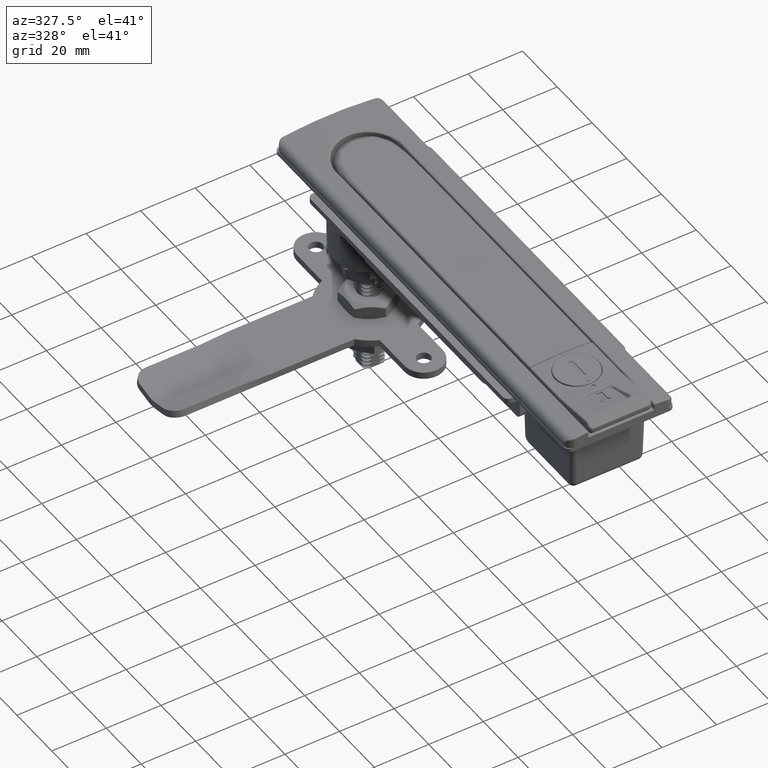
[diagram: clean part render]
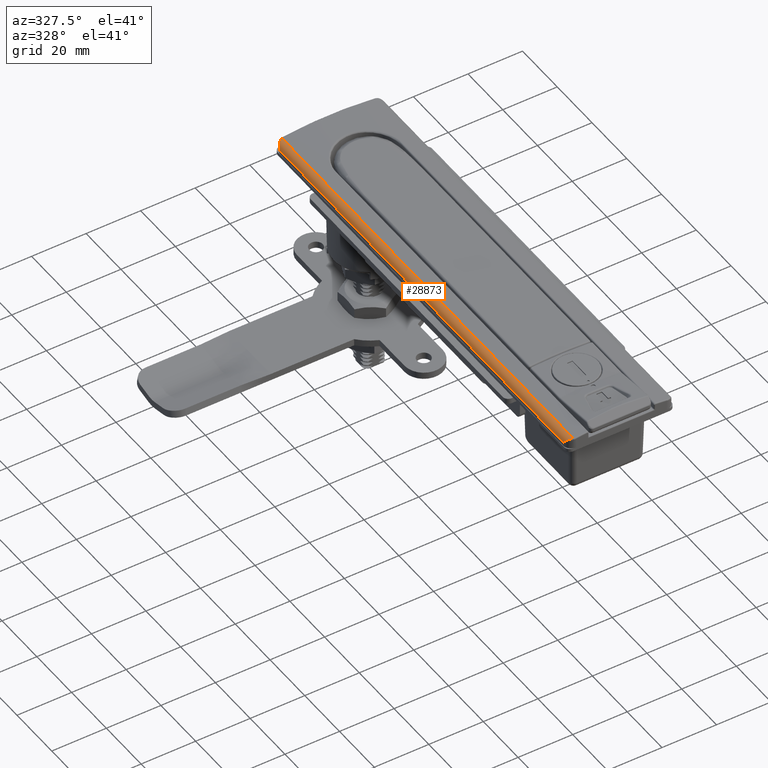
[diagram: same view with one face highlighted and labeled with its STEP entity id]
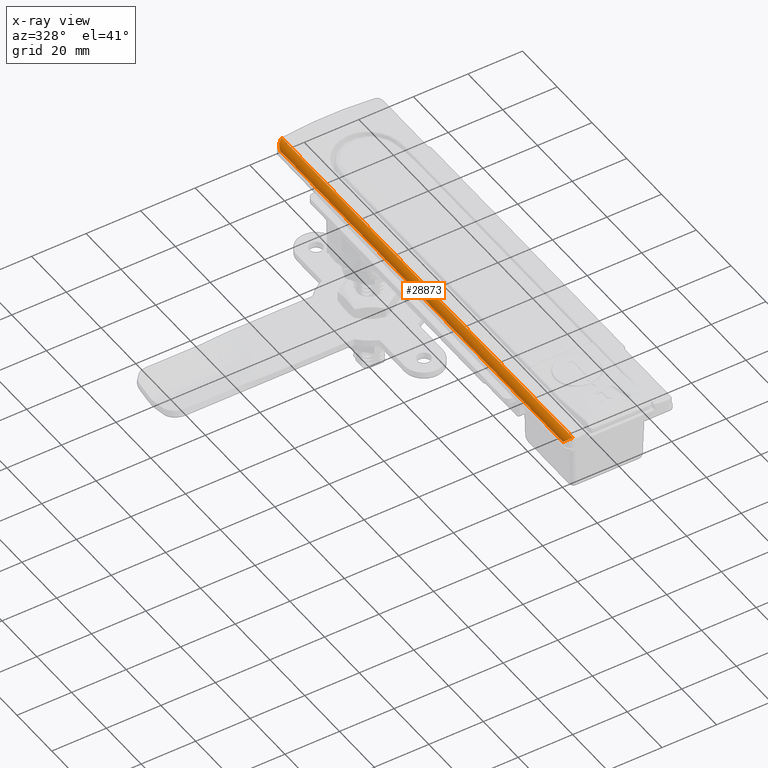
[diagram: x-ray of the same camera — body ghosted, the highlighted face saturated]
A machine part, auxiliary view. The second image highlights one B-rep face of the part: STEP entity #28873.
The next image is the same camera in x-ray: the body ghosted, the highlighted face saturated — about 0% of this face is hidden behind the body in this view.
In plain terms, the highlighted cylindrical surface (edge-blend (fillet) strip) has radius 2.5 mm, axis along (0, 1, 0).
Its self-contained STEP definition (entity closure, byte-faithful):
#899=B_SPLINE_CURVE_WITH_KNOTS('',3,(#41382,#41383,#41384,#41385,#41386,
#41387,#41388,#41389,#41390,#41391,#41392,#41393,#41394,#41395,#41396,#41397,
#41398,#41399,#41400,#41401,#41402,#41403,#41404,#41405,#41406,#41407,#41408,
#41409,#41410,#41411,#41412,#41413,#41414,#41415,#41416,#41417,#41418,#41419,
#41420,#41421,#41422,#41423,#41424,#41425,#41426,#41427,#41428,#41429,#41430,
#41431,#41432,#41433,#41434,#41435,#41436,#41437,#41438,#41439,#41440,#41441,
#41442,#41443,#41444,#41445),.UNSPECIFIED.,.F.,.F.,(4,2,2,2,2,2,2,2,2,2,
2,2,2,2,2,2,2,2,2,2,2,2,2,2,2,2,2,2,2,2,2,4),(0.,0.00231839219265175,0.0190798729654488,
0.0704680088414528,0.151787678403318,0.224225319787963,0.232335598265963,
0.282867136804634,0.351185653799257,0.359037085715273,0.426179605166864,
0.431020366999138,0.476770705622738,0.489604604941881,0.50178888221901,
0.556868282303051,0.570925595231668,0.587546932447189,0.643679763727768,
0.698378204576052,0.750765008973684,0.755228231072779,0.803397815955944,
0.812078257569507,0.850369116940246,0.856526860676934,0.895530795836229,
0.933320947305674,0.944410289971249,0.982971590052217,0.988076993326316,
1.),.UNSPECIFIED.);
#900=B_SPLINE_CURVE_WITH_KNOTS('',3,(#41446,#41447,#41448,#41449,#41450,
#41451,#41452,#41453,#41454,#41455,#41456,#41457,#41458,#41459,#41460,#41461,
#41462,#41463,#41464,#41465,#41466,#41467,#41468,#41469,#41470,#41471,#41472,
#41473,#41474,#41475,#41476,#41477,#41478,#41479,#41480,#41481,#41482,#41483,
#41484,#41485,#41486,#41487,#41488,#41489,#41490,#41491,#41492,#41493,#41494,
#41495,#41496,#41497,#41498,#41499,#41500,#41501,#41502,#41503,#41504,#41505,
#41506,#41507,#41508,#41509),.UNSPECIFIED.,.F.,.F.,(4,2,2,2,2,2,2,2,2,2,
2,2,2,2,2,2,2,2,2,2,2,2,2,2,2,2,2,2,2,2,2,4),(0.,0.0385238132149593,0.0436499212199504,
0.0810854081770518,0.0875331482621013,0.126078843952104,0.131590001920873,
0.173421882344297,0.176001871622786,0.187921742430257,0.236069871077997,
0.244054573710852,0.298545436622622,0.355499252087629,0.412453067552637,
0.469568670774145,0.481485530095085,0.510391240638082,0.552492295061844,
0.618895874251601,0.624696084424725,0.690956882403297,0.698687668508736,
0.717132863195274,0.786280044012841,0.79757346120203,0.872605884935754,
0.878790981751621,0.929531991158465,0.980920127034293,0.997681607807498,
1.),.UNSPECIFIED.);
#3310=FACE_OUTER_BOUND('',#5099,.T.);
#5099=EDGE_LOOP('',(#19368,#19369,#19370,#19371));
#6882=LINE('',#39388,#8658);
#6887=LINE('',#39586,#8663);
#8658=VECTOR('',#32979,167.565290400036);
#8663=VECTOR('',#33000,162.6);
#11341=VERTEX_POINT('',#39386);
#11342=VERTEX_POINT('',#39387);
#11355=VERTEX_POINT('',#39583);
#11356=VERTEX_POINT('',#39585);
#14286=EDGE_CURVE('',#11341,#11342,#6882,.T.);
#14301=EDGE_CURVE('',#11355,#11356,#6887,.T.);
#14556=EDGE_CURVE('',#11355,#11342,#899,.T.);
#14557=EDGE_CURVE('',#11341,#11356,#900,.T.);
#19368=ORIENTED_EDGE('',*,*,#14301,.F.);
#19369=ORIENTED_EDGE('',*,*,#14556,.T.);
#19370=ORIENTED_EDGE('',*,*,#14286,.F.);
#19371=ORIENTED_EDGE('',*,*,#14557,.T.);
#28059=CYLINDRICAL_SURFACE('',#30784,2.5);
#28873=ADVANCED_FACE('',(#3310),#28059,.T.);
#30784=AXIS2_PLACEMENT_3D('',#41381,#33491,#33492);
#32979=DIRECTION('',(-1.,0.,0.));
#33000=DIRECTION('',(1.,-3.32576329656011E-16,0.));
#33491=DIRECTION('center_axis',(1.,0.,0.));
#33492=DIRECTION('ref_axis',(0.,0.,-1.));
#39386=CARTESIAN_POINT('',(22.7326452000176,-17.4241863362338,-36.2601426406246));
#39387=CARTESIAN_POINT('',(-144.832645200018,-17.4241863362338,-36.2601426406246));
#39388=CARTESIAN_POINT('',(70.75,-17.4241863362338,-36.2601426406246));
#39583=CARTESIAN_POINT('',(-142.35,-19.5999999999999,-33.7812511102427));
#39585=CARTESIAN_POINT('',(20.2499999999999,-19.6,-33.7812511102427));
#39586=CARTESIAN_POINT('',(-141.85,-19.5999999999999,-33.7812511102427));
#41381=CARTESIAN_POINT('Origin',(70.75,-17.1,-33.7812511102427));
#41382=CARTESIAN_POINT('Ctrl Pts',(-142.35,-19.5999999999999,-33.7812511102427));
#41383=CARTESIAN_POINT('Ctrl Pts',(-142.352323409675,-19.5999999999999,
-33.7837369285925));
#41384=CARTESIAN_POINT('Ctrl Pts',(-142.354646820189,-19.5999963833922,
-33.7862227489817));
#41385=CARTESIAN_POINT('Ctrl Pts',(-142.373925492445,-19.5999358552229,
-33.806849013592));
#41386=CARTESIAN_POINT('Ctrl Pts',(-142.390881052124,-19.5996891411659,
-33.8249897153647));
#41387=CARTESIAN_POINT('Ctrl Pts',(-142.45979542788,-19.5978960679654,-33.8987188154248));
#41388=CARTESIAN_POINT('Ctrl Pts',(-142.511753234215,-19.5947130161428,
-33.9543013297428));
#41389=CARTESIAN_POINT('Ctrl Pts',(-142.645170657568,-19.5818083378438,
-34.0969781018922));
#41390=CARTESIAN_POINT('Ctrl Pts',(-142.726892392196,-19.5692989790374,
-34.1843147094368));
#41391=CARTESIAN_POINT('Ctrl Pts',(-142.880580223454,-19.5367774449616,
-34.3483386957399));
#41392=CARTESIAN_POINT('Ctrl Pts',(-142.952637063763,-19.5177337022414,
-34.4251466437381));
#41393=CARTESIAN_POINT('Ctrl Pts',(-143.032055122569,-19.4924020912226,
-34.5096219112207));
#41394=CARTESIAN_POINT('Ctrl Pts',(-143.040043689908,-19.4898046828473,
-34.5181171233694));
#41395=CARTESIAN_POINT('Ctrl Pts',(-143.097745192023,-19.4706857417081,
-34.5794625088175));
#41396=CARTESIAN_POINT('Ctrl Pts',(-143.147141833299,-19.4523938966294,
-34.6318950555411));
#41397=CARTESIAN_POINT('Ctrl Pts',(-143.262342150541,-19.4051352984209,
-34.7538962334551));
#41398=CARTESIAN_POINT('Ctrl Pts',(-143.328209158217,-19.3745082210108,
-34.8234319740401));
#41399=CARTESIAN_POINT('Ctrl Pts',(-143.400940616134,-19.3364607509434,
-34.8999014904929));
#41400=CARTESIAN_POINT('Ctrl Pts',(-143.408429265986,-19.3324927481765,
-34.9077712890824));
#41401=CARTESIAN_POINT('Ctrl Pts',(-143.479874296909,-19.2941508987836,
-34.9828161477943));
#41402=CARTESIAN_POINT('Ctrl Pts',(-143.543195815443,-19.2564425540954,
-35.0490503701192));
#41403=CARTESIAN_POINT('Ctrl Pts',(-143.610094500244,-19.2124115198484,
-35.1186937451626));
#41404=CARTESIAN_POINT('Ctrl Pts',(-143.614588542146,-19.2094330488626,
-35.1233705382035));
#41405=CARTESIAN_POINT('Ctrl Pts',(-143.661504924252,-19.1781226300244,
-35.1721776630078));
#41406=CARTESIAN_POINT('Ctrl Pts',(-143.703528535716,-19.1482137839721,
-35.2157639826759));
#41407=CARTESIAN_POINT('Ctrl Pts',(-143.756616992388,-19.1079995366279,
-35.2706066351557));
#41408=CARTESIAN_POINT('Ctrl Pts',(-143.768202584034,-19.099072480259,-35.2825613231326));
#41409=CARTESIAN_POINT('Ctrl Pts',(-143.790694417541,-19.0814468535733,
-35.3057410196823));
#41410=CARTESIAN_POINT('Ctrl Pts',(-143.801615153234,-19.0727459806543,
-35.3169860827012));
#41411=CARTESIAN_POINT('Ctrl Pts',(-143.861695006975,-19.0240852588419,
-35.3787875445333));
#41412=CARTESIAN_POINT('Ctrl Pts',(-143.910061031884,-18.9819901727862,
-35.428279113245));
#41413=CARTESIAN_POINT('Ctrl Pts',(-143.969536038994,-18.926370840879,-35.4887433759121));
#41414=CARTESIAN_POINT('Ctrl Pts',(-143.981564779744,-18.9149174154417,
-35.500951381392));
#41415=CARTESIAN_POINT('Ctrl Pts',(-144.007670780042,-18.8896061033665,
-35.5273993462048));
#41416=CARTESIAN_POINT('Ctrl Pts',(-144.02172153534,-18.8756911769599,-35.5416032730655));
#41417=CARTESIAN_POINT('Ctrl Pts',(-144.082797639488,-18.8139042027498,
-35.6032004347118));
#41418=CARTESIAN_POINT('Ctrl Pts',(-144.129091443246,-18.7636113705208,
-35.6495525258702));
#41419=CARTESIAN_POINT('Ctrl Pts',(-144.21828918861,-18.6592188877495,-35.7379585306061));
#41420=CARTESIAN_POINT('Ctrl Pts',(-144.261249589146,-18.6052486107297,
-35.7800909377052));
#41421=CARTESIAN_POINT('Ctrl Pts',(-144.342754744298,-18.494970941146,-35.8588884546944));
#41422=CARTESIAN_POINT('Ctrl Pts',(-144.381409823973,-18.4388581773497,
-35.8957083997451));
#41423=CARTESIAN_POINT('Ctrl Pts',(-144.421780506371,-18.375762143588,-35.9334296525917));
#41424=CARTESIAN_POINT('Ctrl Pts',(-144.42493941883,-18.3707938417458,-35.9363761658827));
#41425=CARTESIAN_POINT('Ctrl Pts',(-144.462065195234,-18.3120324430005,
-35.9709447104113));
#41426=CARTESIAN_POINT('Ctrl Pts',(-144.494798027504,-18.2565492572752,
-36.0008166793193));
#41427=CARTESIAN_POINT('Ctrl Pts',(-144.531741376935,-18.1892348732037,
-36.0337099767015));
#41428=CARTESIAN_POINT('Ctrl Pts',(-144.537335879528,-18.1789062672305,
-36.0386675710358));
#41429=CARTESIAN_POINT('Ctrl Pts',(-144.567352264908,-18.1227492847155,
-36.065136040938));
#41430=CARTESIAN_POINT('Ctrl Pts',(-144.591011884892,-18.0757478850545,
-36.0855456358642));
#41431=CARTESIAN_POINT('Ctrl Pts',(-144.617461107944,-18.0199482240851,
-36.1076797787939));
#41432=CARTESIAN_POINT('Ctrl Pts',(-144.62110273463,-18.0121903636371,-36.1107115369573));
#41433=CARTESIAN_POINT('Ctrl Pts',(-144.64764410282,-17.9550959135389,-36.1326882620308));
#41434=CARTESIAN_POINT('Ctrl Pts',(-144.669589834574,-17.904673399487,-36.1502629336297));
#41435=CARTESIAN_POINT('Ctrl Pts',(-144.710631941144,-17.8035378940437,
-36.1818240695394));
#41436=CARTESIAN_POINT('Ctrl Pts',(-144.729795483634,-17.752883150412,-36.1959048829116));
#41437=CARTESIAN_POINT('Ctrl Pts',(-144.75313055519,-17.6864512386602,-36.2121228232794));
#41438=CARTESIAN_POINT('Ctrl Pts',(-144.758328123942,-17.6713191313312,
-36.215669655075));
#41439=CARTESIAN_POINT('Ctrl Pts',(-144.781159235379,-17.6033182987376,
-36.2309489996229));
#41440=CARTESIAN_POINT('Ctrl Pts',(-144.797744755201,-17.5498477923319,
-36.2411858625123));
#41441=CARTESIAN_POINT('Ctrl Pts',(-144.815108452328,-17.488764747282,-36.2508933647417));
#41442=CARTESIAN_POINT('Ctrl Pts',(-144.817116658381,-17.4816148593681,
-36.2519992197299));
#41443=CARTESIAN_POINT('Ctrl Pts',(-144.823740955478,-17.4577415392783,
-36.2555904176429));
#41444=CARTESIAN_POINT('Ctrl Pts',(-144.828256111373,-17.4409826662175,
-36.2579460375813));
#41445=CARTESIAN_POINT('Ctrl Pts',(-144.832645200018,-17.4241863362338,
-36.2601426406246));
#41446=CARTESIAN_POINT('Ctrl Pts',(22.7326452000176,-17.4241863362338,-36.2601426406246));
#41447=CARTESIAN_POINT('Ctrl Pts',(22.7184638415929,-17.4784560935777,-36.2530453095853));
#41448=CARTESIAN_POINT('Ctrl Pts',(22.7029674117495,-17.5323351534054,-36.2442850202505));
#41449=CARTESIAN_POINT('Ctrl Pts',(22.6840716669318,-17.5927360803072,-36.2324925012976));
#41450=CARTESIAN_POINT('Ctrl Pts',(22.6818317369012,-17.5998193108542,-36.2310785027806));
#41451=CARTESIAN_POINT('Ctrl Pts',(22.6630632992634,-17.658544044107,-36.2190970420844));
#41452=CARTESIAN_POINT('Ctrl Pts',(22.645426376145,-17.7096247794771,-36.2070089071032));
#41453=CARTESIAN_POINT('Ctrl Pts',(22.623497752337,-17.7686109549463,-36.1910992406164));
#41454=CARTESIAN_POINT('Ctrl Pts',(22.6202441229892,-17.7772552252146,-36.1887177149623));
#41455=CARTESIAN_POINT('Ctrl Pts',(22.597321436216,-17.8374127919214,-36.1717956525023));
#41456=CARTESIAN_POINT('Ctrl Pts',(22.576563960521,-17.8881082296128,-36.1557421329645));
#41457=CARTESIAN_POINT('Ctrl Pts',(22.5516835568027,-17.9448891632877,-36.1357501448937));
#41458=CARTESIAN_POINT('Ctrl Pts',(22.5485506021331,-17.9519712471913,-36.1332199815342));
#41459=CARTESIAN_POINT('Ctrl Pts',(22.5214632714417,-18.0126268283038,-36.1112364530426));
#41460=CARTESIAN_POINT('Ctrl Pts',(22.4963766805149,-18.0650029429274,-36.0901404767578));
#41461=CARTESIAN_POINT('Ctrl Pts',(22.4687195366064,-18.1191487728243,-36.0661679887281));
#41462=CARTESIAN_POINT('Ctrl Pts',(22.4671092084406,-18.1222890077999,-36.0647697372484));
#41463=CARTESIAN_POINT('Ctrl Pts',(22.4580386566157,-18.1399079808571,-36.0568799993845));
#41464=CARTESIAN_POINT('Ctrl Pts',(22.4505002352861,-18.1542773691542,-36.050275909273));
#41465=CARTESIAN_POINT('Ctrl Pts',(22.4121145788781,-18.2260922332186,-36.0164274102459));
#41466=CARTESIAN_POINT('Ctrl Pts',(22.3798862340988,-18.2821348692726,-35.9872578419868));
#41467=CARTESIAN_POINT('Ctrl Pts',(22.3408223563215,-18.3455152741323,-35.9511420599378));
#41468=CARTESIAN_POINT('Ctrl Pts',(22.335230539523,-18.3544848354808,-35.9459550489689));
#41469=CARTESIAN_POINT('Ctrl Pts',(22.2912101037021,-18.4243007396454,-35.9049900778829));
#41470=CARTESIAN_POINT('Ctrl Pts',(22.2512183476942,-18.4830142324333,-35.8669976463467));
#41471=CARTESIAN_POINT('Ctrl Pts',(22.1667012227047,-18.598319992101,-35.7854263485864));
#41472=CARTESIAN_POINT('Ctrl Pts',(22.1220525776042,-18.6546966184277,-35.7416742131226));
#41473=CARTESIAN_POINT('Ctrl Pts',(22.0304454261354,-18.7621395440944,-35.6509081872178));
#41474=CARTESIAN_POINT('Ctrl Pts',(21.9834868441971,-18.8132069763269,-35.6038955192209));
#41475=CARTESIAN_POINT('Ctrl Pts',(21.8877271669188,-18.9100812087763,-35.5073188890847));
#41476=CARTESIAN_POINT('Ctrl Pts',(21.8386295544348,-18.9562135678101,-35.457413792387));
#41477=CARTESIAN_POINT('Ctrl Pts',(21.7781046359926,-19.009074595331,-35.3955096863894));
#41478=CARTESIAN_POINT('Ctrl Pts',(21.7676137861341,-19.0180953290299,-35.3847662831129));
#41479=CARTESIAN_POINT('Ctrl Pts',(21.7315355139054,-19.0486372573483,-35.3477756410573));
#41480=CARTESIAN_POINT('Ctrl Pts',(21.7057334100389,-19.0696633311146,-35.3212377342713));
#41481=CARTESIAN_POINT('Ctrl Pts',(21.6418876554863,-19.1196991907038,-35.2554347916267));
#41482=CARTESIAN_POINT('Ctrl Pts',(21.6035149937179,-19.1481326542854,-35.2157254228803));
#41483=CARTESIAN_POINT('Ctrl Pts',(21.5036662218771,-19.2179421159271,-35.1121051381249));
#41484=CARTESIAN_POINT('Ctrl Pts',(21.4415722334727,-19.2573931151117,-35.0473481592295));
#41485=CARTESIAN_POINT('Ctrl Pts',(21.373271677129,-19.2966948597254,-34.9758073873803));
#41486=CARTESIAN_POINT('Ctrl Pts',(21.3677795291834,-19.299826815042,-34.9700525411297));
#41487=CARTESIAN_POINT('Ctrl Pts',(21.2994798933839,-19.3384246682061,-34.8984596436596));
#41488=CARTESIAN_POINT('Ctrl Pts',(21.2359905508474,-19.3706252287551,-34.8316199167282));
#41489=CARTESIAN_POINT('Ctrl Pts',(21.1646049224591,-19.4029233120628,-34.7562198567431));
#41490=CARTESIAN_POINT('Ctrl Pts',(21.1571404646101,-19.4062533266442,-34.7483326327436));
#41491=CARTESIAN_POINT('Ctrl Pts',(21.1318474899605,-19.4173779258496,-34.721597334297));
#41492=CARTESIAN_POINT('Ctrl Pts',(21.1139952604938,-19.4249646576077,-34.7027057600225));
#41493=CARTESIAN_POINT('Ctrl Pts',(21.0290995305052,-19.4597967870414,-34.6127842459964));
#41494=CARTESIAN_POINT('Ctrl Pts',(20.9612931707424,-19.4839161028152,-34.5407554837367));
#41495=CARTESIAN_POINT('Ctrl Pts',(20.8817825150678,-19.5080115612972,-34.4561307164813));
#41496=CARTESIAN_POINT('Ctrl Pts',(20.8706052508223,-19.5113036614628,-34.4442308098939));
#41497=CARTESIAN_POINT('Ctrl Pts',(20.7850656785663,-19.5357742956201,-34.3531344433722));
#41498=CARTESIAN_POINT('Ctrl Pts',(20.7101280981376,-19.5530324208092,-34.2731787569969));
#41499=CARTESIAN_POINT('Ctrl Pts',(20.6287206465851,-19.5674091486207,-34.1862301309712));
#41500=CARTESIAN_POINT('Ctrl Pts',(20.6225192566284,-19.5684770131722,-34.1796060596012));
#41501=CARTESIAN_POINT('Ctrl Pts',(20.5654280358439,-19.5780572731721,-34.1186185965381));
#41502=CARTESIAN_POINT('Ctrl Pts',(20.5144284865706,-19.5847818462092,-34.0641023828385));
#41503=CARTESIAN_POINT('Ctrl Pts',(20.4117532342166,-19.5947130161354,-33.9543013297424));
#41504=CARTESIAN_POINT('Ctrl Pts',(20.3597954278806,-19.5978960679624,-33.8987188154252));
#41505=CARTESIAN_POINT('Ctrl Pts',(20.2908810521257,-19.5996891411655,-33.8249897153634));
#41506=CARTESIAN_POINT('Ctrl Pts',(20.273925492429,-19.5999358552229,-33.8068490136071));
#41507=CARTESIAN_POINT('Ctrl Pts',(20.2546468202039,-19.5999963833924,-33.7862227489673));
#41508=CARTESIAN_POINT('Ctrl Pts',(20.2523234096785,-19.6,-33.7837369285888));
#41509=CARTESIAN_POINT('Ctrl Pts',(20.2499999999999,-19.6,-33.7812511102427));